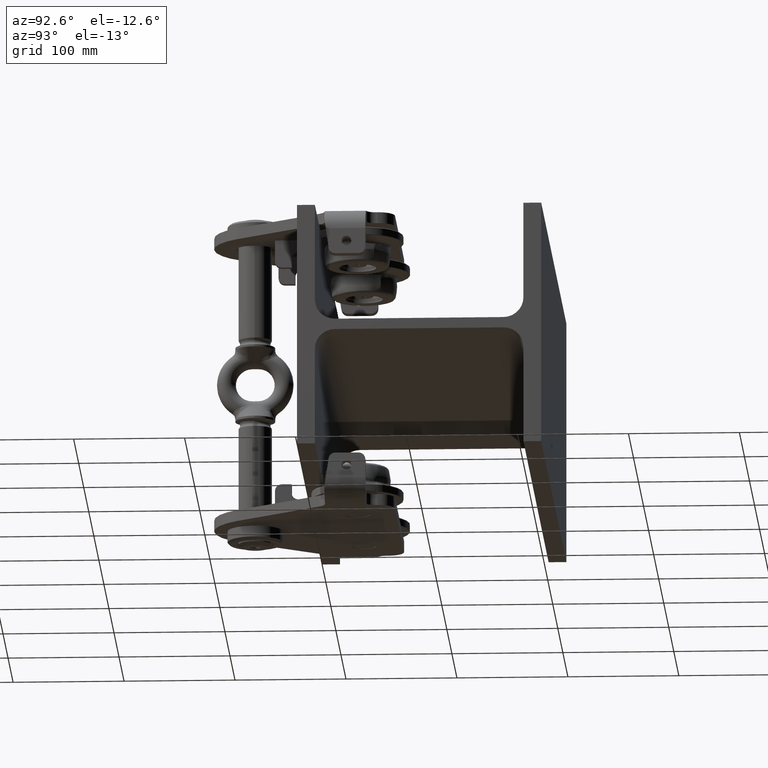
[diagram: clean part render]
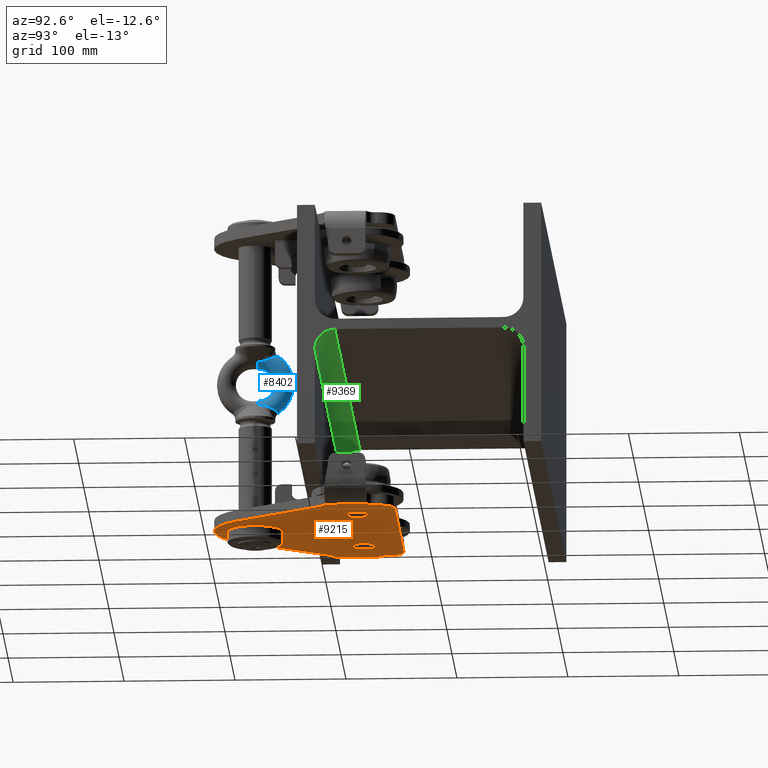
[diagram: same view with three faces highlighted in distinct colors, each labeled with its STEP entity id]
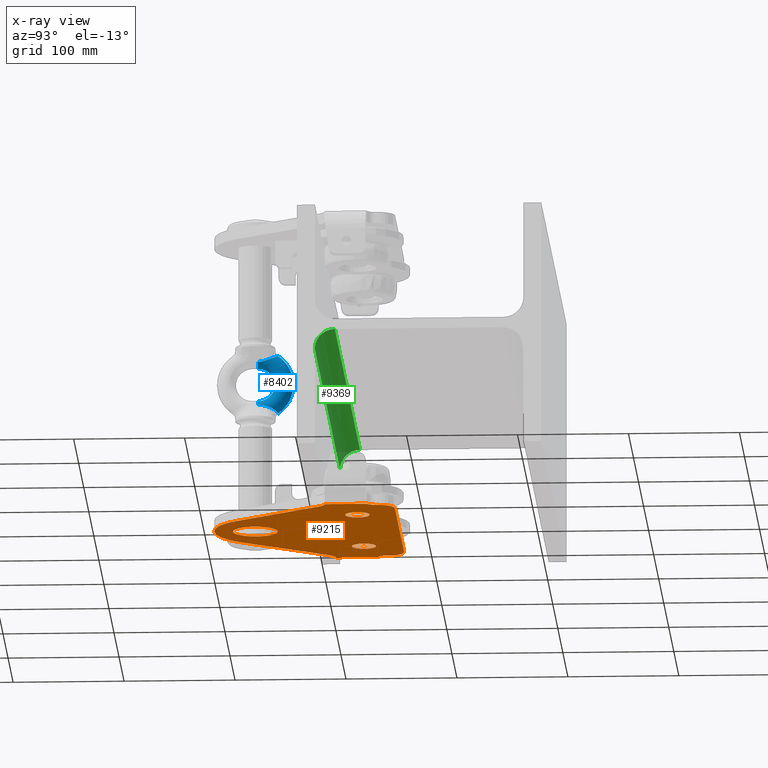
[diagram: x-ray of the same camera — body ghosted, the three highlighted faces saturated]
A machine part, auxiliary view with three faces highlighted in distinct colors.
The next image is the same camera in x-ray (body ghosted, the three faces saturated) — at least one of them is partly hidden behind the body in this view.
Their STEP definitions:

[orange] entity #9215 — the highlighted planar face has unit normal (0, 0, -1).
#865 = CARTESIAN_POINT ( 'NONE',  ( 112.9999999999998900, -45.99999999999968700, -135.0000000000001100 ) ) ;
#1586 = DIRECTION ( 'NONE',  ( 0.0000000000000000000, 1.000000000000000000, 0.0000000000000000000 ) ) ;
#1664 = CIRCLE ( 'NONE', #12800, 8.000000000000007100 ) ;
#2014 = DIRECTION ( 'NONE',  ( 0.0000000000000000000, -1.000000000000000000, 0.0000000000000000000 ) ) ;
#2018 = LINE ( 'NONE', #9593, #3473 ) ;
#2527 = CARTESIAN_POINT ( 'NONE',  ( 100.5044433247463200, -97.11722923742202300, -135.0000000000001100 ) ) ;
#2792 = ORIENTED_EDGE ( 'NONE', *, *, #28403, .T. ) ;
#3178 = VECTOR ( 'NONE', #13785, 1000.000000000000000 ) ;
#3216 = VERTEX_POINT ( 'NONE', #13326 ) ;
#3361 = DIRECTION ( 'NONE',  ( 0.0000000000000000000, -1.224606353822377300E-016, 1.000000000000000000 ) ) ;
#3473 = VECTOR ( 'NONE', #12899, 1000.000000000000000 ) ;
#3526 = AXIS2_PLACEMENT_3D ( 'NONE', #21510, #15787, #3726 ) ;
#3682 = VERTEX_POINT ( 'NONE', #6926 ) ;
#3726 = DIRECTION ( 'NONE',  ( 0.0000000000000000000, 1.000000000000000000, 0.0000000000000000000 ) ) ;
#4007 = ORIENTED_EDGE ( 'NONE', *, *, #27971, .T. ) ;
#4423 = CIRCLE ( 'NONE', #11674, 15.00000000000000000 ) ;
#4471 = ORIENTED_EDGE ( 'NONE', *, *, #23374, .F. ) ;
#4672 = DIRECTION ( 'NONE',  ( 0.0000000000000000000, 1.224606353822377300E-016, -1.000000000000000000 ) ) ;
#5060 = CARTESIAN_POINT ( 'NONE',  ( 89.99999999999990100, -43.99999999999968700, -135.0000000000001100 ) ) ;
#5061 = CARTESIAN_POINT ( 'NONE',  ( -110.0000000000001000, -53.41619848709533600, -135.0000000000001100 ) ) ;
#5373 = DIRECTION ( 'NONE',  ( 0.0000000000000000000, -1.224606353822377300E-016, 1.000000000000000000 ) ) ;
#5562 = CARTESIAN_POINT ( 'NONE',  ( -65.00000000000012800, -52.99999999999970200, -135.0000000000001100 ) ) ;
#6341 = CIRCLE ( 'NONE', #37914, 10.99999999999999600 ) ;
#6357 = AXIS2_PLACEMENT_3D ( 'NONE', #31915, #22865, #17004 ) ;
#6752 = CARTESIAN_POINT ( 'NONE',  ( 109.9999999999998900, -53.41619848709535000, -135.0000000000001100 ) ) ;
#6811 = DIRECTION ( 'NONE',  ( 0.0000000000000000000, -1.000000000000000000, -1.224606353822377300E-016 ) ) ;
#6926 = CARTESIAN_POINT ( 'NONE',  ( -89.99999999999997200, -28.99999999999966600, -135.0000000000001100 ) ) ;
#6953 = AXIS2_PLACEMENT_3D ( 'NONE', #5060, #7848, #2014 ) ;
#6984 = DIRECTION ( 'NONE',  ( 0.0000000000000000000, 1.000000000000000000, 0.0000000000000000000 ) ) ;
#7076 = VERTEX_POINT ( 'NONE', #38728 ) ;
#7254 = LINE ( 'NONE', #2527, #27075 ) ;
#7291 = DIRECTION ( 'NONE',  ( 0.0000000000000000000, -1.000000000000000000, 0.0000000000000000000 ) ) ;
#7485 = EDGE_CURVE ( 'NONE', #14420, #3682, #19963, .T. ) ;
#7587 = DIRECTION ( 'NONE',  ( -0.0000000000000000000, -1.224606353822377300E-016, 1.000000000000000000 ) ) ;
#7651 = ORIENTED_EDGE ( 'NONE', *, *, #19091, .T. ) ;
#7652 = VERTEX_POINT ( 'NONE', #33727 ) ;
#7683 = PLANE ( 'NONE',  #7805 ) ;
#7805 = AXIS2_PLACEMENT_3D ( 'NONE', #19970, #13790, #7952 ) ;
#7848 = DIRECTION ( 'NONE',  ( 0.0000000000000000000, 1.224606353822377300E-016, -1.000000000000000000 ) ) ;
#7901 = CIRCLE ( 'NONE', #6953, 14.99999999999999300 ) ;
#7905 = EDGE_CURVE ( 'NONE', #25572, #28253, #23162, .T. ) ;
#7952 = DIRECTION ( 'NONE',  ( 0.0000000000000000000, 1.000000000000000000, 1.224606353822377300E-016 ) ) ;
#8097 = FACE_BOUND ( 'NONE', #37739, .T. ) ;
#8184 = ORIENTED_EDGE ( 'NONE', *, *, #32822, .T. ) ;
#8209 = CARTESIAN_POINT ( 'NONE',  ( -110.0000000000001000, -91.22555426256066400, -135.0000000000001100 ) ) ;
#8561 = FACE_BOUND ( 'NONE', #15406, .T. ) ;
#8611 = DIRECTION ( 'NONE',  ( -0.5921847175051813100, -0.8058022464310388200, -9.867905509037950400E-017 ) ) ;
#8807 = ORIENTED_EDGE ( 'NONE', *, *, #17327, .T. ) ;
#9034 = FACE_OUTER_BOUND ( 'NONE', #38566, .T. ) ;
#9215 = ADVANCED_FACE ( 'NONE', ( #10924, #8561, #8097, #9034 ), #7683, .T. ) ;
#9593 = CARTESIAN_POINT ( 'NONE',  ( -110.0000000000001000, -195.9999999999997200, -135.0000000000001100 ) ) ;
#10379 = VERTEX_POINT ( 'NONE', #26289 ) ;
#10614 = ORIENTED_EDGE ( 'NONE', *, *, #18399, .T. ) ;
#10619 = ORIENTED_EDGE ( 'NONE', *, *, #18892, .T. ) ;
#10723 = DIRECTION ( 'NONE',  ( 0.0000000000000000000, 1.224606353822377300E-016, -1.000000000000000000 ) ) ;
#10924 = FACE_BOUND ( 'NONE', #38836, .T. ) ;
#11299 = CIRCLE ( 'NONE', #18006, 20.10000000000000900 ) ;
#11591 = ORIENTED_EDGE ( 'NONE', *, *, #7485, .F. ) ;
#11674 = AXIS2_PLACEMENT_3D ( 'NONE', #22724, #26049, #25784 ) ;
#11782 = EDGE_CURVE ( 'NONE', #23353, #14688, #18636, .T. ) ;
#12043 = ORIENTED_EDGE ( 'NONE', *, *, #11782, .T. ) ;
#12799 = AXIS2_PLACEMENT_3D ( 'NONE', #25381, #4672, #31509 ) ;
#12800 = AXIS2_PLACEMENT_3D ( 'NONE', #22594, #7587, #37536 ) ;
#12899 = DIRECTION ( 'NONE',  ( 0.0000000000000000000, 1.000000000000000000, 1.224606353822377300E-016 ) ) ;
#13051 = EDGE_CURVE ( 'NONE', #3216, #7076, #27332, .T. ) ;
#13326 = CARTESIAN_POINT ( 'NONE',  ( -8.326672684688674100E-014, -138.8999999999996900, -135.0000000000001100 ) ) ;
#13496 = EDGE_CURVE ( 'NONE', #38339, #26325, #25846, .T. ) ;
#13605 = VECTOR ( 'NONE', #30823, 1000.000000000000000 ) ;
#13785 = DIRECTION ( 'NONE',  ( 0.0000000000000000000, 1.000000000000000000, 1.224606353822377300E-016 ) ) ;
#13790 = DIRECTION ( 'NONE',  ( 0.0000000000000000000, 1.224606353822377300E-016, -1.000000000000000000 ) ) ;
#14420 = VERTEX_POINT ( 'NONE', #18443 ) ;
#14490 = CARTESIAN_POINT ( 'NONE',  ( -8.326672684688674100E-014, -158.9999999999996900, -135.0000000000001100 ) ) ;
#14530 = CARTESIAN_POINT ( 'NONE',  ( 64.99999999999990100, -63.99999999999966600, -135.0000000000001100 ) ) ;
#14688 = VERTEX_POINT ( 'NONE', #31635 ) ;
#14737 = CARTESIAN_POINT ( 'NONE',  ( 64.99999999999990100, -52.99999999999965900, -135.0000000000001100 ) ) ;
#15406 = EDGE_LOOP ( 'NONE', ( #34623, #10619 ) ) ;
#15750 = CARTESIAN_POINT ( 'NONE',  ( -100.5044433247465300, -97.11722923742202300, -135.0000000000001100 ) ) ;
#15787 = DIRECTION ( 'NONE',  ( 0.0000000000000000000, 1.224606353822377300E-016, -1.000000000000000000 ) ) ;
#15968 = LINE ( 'NONE', #15750, #13605 ) ;
#16336 = ORIENTED_EDGE ( 'NONE', *, *, #34070, .F. ) ;
#16840 = CARTESIAN_POINT ( 'NONE',  ( -8.326672684688674100E-014, -158.9999999999996900, -135.0000000000001100 ) ) ;
#17004 = DIRECTION ( 'NONE',  ( 0.0000000000000000000, 1.000000000000000000, 0.0000000000000000000 ) ) ;
#17221 = CARTESIAN_POINT ( 'NONE',  ( 109.9999999999998900, -195.9999999999997200, -135.0000000000001100 ) ) ;
#17327 = EDGE_CURVE ( 'NONE', #21966, #10379, #35831, .T. ) ;
#17521 = DIRECTION ( 'NONE',  ( 0.0000000000000000000, 1.224606353822377300E-016, -1.000000000000000000 ) ) ;
#17603 = DIRECTION ( 'NONE',  ( -1.000000000000000000, -0.0000000000000000000, 0.0000000000000000000 ) ) ;
#17794 = ORIENTED_EDGE ( 'NONE', *, *, #30717, .T. ) ;
#17808 = VECTOR ( 'NONE', #6811, 1000.000000000000000 ) ;
#17820 = EDGE_CURVE ( 'NONE', #26325, #3682, #21246, .T. ) ;
#18006 = AXIS2_PLACEMENT_3D ( 'NONE', #14490, #17521, #39275 ) ;
#18399 = EDGE_CURVE ( 'NONE', #19684, #21601, #31126, .T. ) ;
#18443 = CARTESIAN_POINT ( 'NONE',  ( 89.99999999999990100, -28.99999999999968700, -135.0000000000001100 ) ) ;
#18570 = VECTOR ( 'NONE', #17603, 1000.000000000000000 ) ;
#18636 = CIRCLE ( 'NONE', #12799, 54.99999999999997900 ) ;
#18892 = EDGE_CURVE ( 'NONE', #36714, #7652, #32863, .T. ) ;
#19091 = EDGE_CURVE ( 'NONE', #25450, #23543, #4423, .T. ) ;
#19684 = VERTEX_POINT ( 'NONE', #35187 ) ;
#19963 = LINE ( 'NONE', #26526, #18570 ) ;
#19970 = CARTESIAN_POINT ( 'NONE',  ( -110.0000000000001000, -195.9999999999997200, -135.0000000000001100 ) ) ;
#20144 = VERTEX_POINT ( 'NONE', #6752 ) ;
#20662 = CARTESIAN_POINT ( 'NONE',  ( -105.0000000000000900, -43.99999999999976600, -135.0000000000001100 ) ) ;
#21246 = CIRCLE ( 'NONE', #3526, 15.00000000000000000 ) ;
#21432 = CARTESIAN_POINT ( 'NONE',  ( 104.9999999999998900, -43.99999999999978700, -135.0000000000001100 ) ) ;
#21510 = CARTESIAN_POINT ( 'NONE',  ( -90.00000000000008500, -43.99999999999966600, -135.0000000000001100 ) ) ;
#21601 = VERTEX_POINT ( 'NONE', #27132 ) ;
#21690 = CARTESIAN_POINT ( 'NONE',  ( 104.9999999999998900, -43.99999999999978700, -135.0000000000001100 ) ) ;
#21692 = EDGE_CURVE ( 'NONE', #23543, #23243, #2018, .T. ) ;
#21801 = DIRECTION ( 'NONE',  ( 0.0000000000000000000, -1.000000000000000000, 0.0000000000000000000 ) ) ;
#21966 = VERTEX_POINT ( 'NONE', #21432 ) ;
#22594 = CARTESIAN_POINT ( 'NONE',  ( -113.0000000000000900, -45.99999999999966600, -135.0000000000001100 ) ) ;
#22724 = CARTESIAN_POINT ( 'NONE',  ( -112.5914770212121600, -105.9999999999996900, -135.0000000000001100 ) ) ;
#22842 = EDGE_CURVE ( 'NONE', #7652, #36714, #6341, .T. ) ;
#22865 = DIRECTION ( 'NONE',  ( -0.0000000000000000000, -1.224606353822377300E-016, 1.000000000000000000 ) ) ;
#23141 = ORIENTED_EDGE ( 'NONE', *, *, #17820, .T. ) ;
#23162 = CIRCLE ( 'NONE', #29651, 11.00000000000001100 ) ;
#23243 = VERTEX_POINT ( 'NONE', #5061 ) ;
#23353 = VERTEX_POINT ( 'NONE', #26189 ) ;
#23374 = EDGE_CURVE ( 'NONE', #19684, #20144, #33495, .T. ) ;
#23543 = VERTEX_POINT ( 'NONE', #8209 ) ;
#23842 = EDGE_CURVE ( 'NONE', #10379, #20144, #31976, .T. ) ;
#24645 = EDGE_CURVE ( 'NONE', #14688, #25450, #15968, .T. ) ;
#24809 = ORIENTED_EDGE ( 'NONE', *, *, #7905, .T. ) ;
#25359 = CARTESIAN_POINT ( 'NONE',  ( 64.99999999999990100, -63.99999999999966600, -135.0000000000001100 ) ) ;
#25381 = CARTESIAN_POINT ( 'NONE',  ( -8.326672684688674100E-014, -140.9999999999997200, -135.0000000000001100 ) ) ;
#25450 = VERTEX_POINT ( 'NONE', #32187 ) ;
#25572 = VERTEX_POINT ( 'NONE', #14737 ) ;
#25616 = DIRECTION ( 'NONE',  ( 0.0000000000000000000, -1.224606353822377300E-016, 1.000000000000000000 ) ) ;
#25784 = DIRECTION ( 'NONE',  ( 0.0000000000000000000, 1.000000000000000000, 0.0000000000000000000 ) ) ;
#25846 = LINE ( 'NONE', #20662, #27221 ) ;
#26049 = DIRECTION ( 'NONE',  ( -0.0000000000000000000, -1.224606353822377300E-016, 1.000000000000000000 ) ) ;
#26168 = AXIS2_PLACEMENT_3D ( 'NONE', #865, #34107, #6984 ) ;
#26189 = CARTESIAN_POINT ( 'NONE',  ( 44.31912355370705100, -173.5701594627846600, -135.0000000000001100 ) ) ;
#26289 = CARTESIAN_POINT ( 'NONE',  ( 104.9999999999998900, -45.99999999999963100, -135.0000000000001100 ) ) ;
#26325 = VERTEX_POINT ( 'NONE', #34743 ) ;
#26526 = CARTESIAN_POINT ( 'NONE',  ( -110.0000000000001000, -28.99999999999968700, -135.0000000000001100 ) ) ;
#26608 = DIRECTION ( 'NONE',  ( 0.0000000000000000000, -1.224606353822377300E-016, 1.000000000000000000 ) ) ;
#27075 = VECTOR ( 'NONE', #8611, 1000.000000000000200 ) ;
#27132 = CARTESIAN_POINT ( 'NONE',  ( 100.5044433247463200, -97.11722923742202300, -135.0000000000001100 ) ) ;
#27221 = VECTOR ( 'NONE', #32608, 1000.000000000000000 ) ;
#27332 = CIRCLE ( 'NONE', #36490, 20.10000000000000900 ) ;
#27971 = EDGE_CURVE ( 'NONE', #14420, #21966, #7901, .T. ) ;
#28253 = VERTEX_POINT ( 'NONE', #37252 ) ;
#28403 = EDGE_CURVE ( 'NONE', #28253, #25572, #30060, .T. ) ;
#29413 = AXIS2_PLACEMENT_3D ( 'NONE', #33541, #3361, #21801 ) ;
#29651 = AXIS2_PLACEMENT_3D ( 'NONE', #14530, #5373, #29719 ) ;
#29719 = DIRECTION ( 'NONE',  ( 0.0000000000000000000, -1.000000000000000000, 0.0000000000000000000 ) ) ;
#30060 = CIRCLE ( 'NONE', #36444, 11.00000000000001100 ) ;
#30178 = ORIENTED_EDGE ( 'NONE', *, *, #23842, .T. ) ;
#30282 = CARTESIAN_POINT ( 'NONE',  ( -105.0000000000000900, -45.99999999999960900, -135.0000000000001100 ) ) ;
#30519 = ORIENTED_EDGE ( 'NONE', *, *, #21692, .T. ) ;
#30717 = EDGE_CURVE ( 'NONE', #21601, #23353, #7254, .T. ) ;
#30823 = DIRECTION ( 'NONE',  ( -0.5921847175051816500, 0.8058022464310385900, 9.867905509037949100E-017 ) ) ;
#31126 = CIRCLE ( 'NONE', #6357, 15.00000000000000000 ) ;
#31182 = ORIENTED_EDGE ( 'NONE', *, *, #24645, .T. ) ;
#31509 = DIRECTION ( 'NONE',  ( 0.0000000000000000000, 1.000000000000000000, 0.0000000000000000000 ) ) ;
#31635 = CARTESIAN_POINT ( 'NONE',  ( -44.31912355370719300, -173.5701594627846900, -135.0000000000001100 ) ) ;
#31692 = ORIENTED_EDGE ( 'NONE', *, *, #13051, .F. ) ;
#31915 = CARTESIAN_POINT ( 'NONE',  ( 112.5914770212119300, -105.9999999999996900, -135.0000000000001100 ) ) ;
#31976 = CIRCLE ( 'NONE', #26168, 8.000000000000000000 ) ;
#32187 = CARTESIAN_POINT ( 'NONE',  ( -100.5044433247465300, -97.11722923742202300, -135.0000000000001100 ) ) ;
#32608 = DIRECTION ( 'NONE',  ( 0.0000000000000000000, 1.000000000000000000, 1.224606353822377300E-016 ) ) ;
#32645 = ORIENTED_EDGE ( 'NONE', *, *, #13496, .T. ) ;
#32822 = EDGE_CURVE ( 'NONE', #23243, #38339, #1664, .T. ) ;
#32863 = CIRCLE ( 'NONE', #29413, 10.99999999999999600 ) ;
#33028 = DIRECTION ( 'NONE',  ( 0.0000000000000000000, -1.000000000000000000, 0.0000000000000000000 ) ) ;
#33495 = LINE ( 'NONE', #17221, #3178 ) ;
#33541 = CARTESIAN_POINT ( 'NONE',  ( -65.00000000000012800, -63.99999999999969400, -135.0000000000001100 ) ) ;
#33727 = CARTESIAN_POINT ( 'NONE',  ( -65.00000000000012800, -74.99999999999968700, -135.0000000000001100 ) ) ;
#34070 = EDGE_CURVE ( 'NONE', #7076, #3216, #11299, .T. ) ;
#34107 = DIRECTION ( 'NONE',  ( -0.0000000000000000000, -1.224606353822377300E-016, 1.000000000000000000 ) ) ;
#34623 = ORIENTED_EDGE ( 'NONE', *, *, #22842, .T. ) ;
#34743 = CARTESIAN_POINT ( 'NONE',  ( -105.0000000000000900, -43.99999999999977300, -135.0000000000001100 ) ) ;
#35187 = CARTESIAN_POINT ( 'NONE',  ( 109.9999999999998900, -91.22555426256067800, -135.0000000000001100 ) ) ;
#35831 = LINE ( 'NONE', #21690, #17808 ) ;
#36444 = AXIS2_PLACEMENT_3D ( 'NONE', #25359, #25616, #7291 ) ;
#36490 = AXIS2_PLACEMENT_3D ( 'NONE', #16840, #10723, #1586 ) ;
#36714 = VERTEX_POINT ( 'NONE', #5562 ) ;
#37252 = CARTESIAN_POINT ( 'NONE',  ( 64.99999999999990100, -74.99999999999967300, -135.0000000000001100 ) ) ;
#37536 = DIRECTION ( 'NONE',  ( 0.0000000000000000000, 1.000000000000000000, 0.0000000000000000000 ) ) ;
#37739 = EDGE_LOOP ( 'NONE', ( #31692, #16336 ) ) ;
#37914 = AXIS2_PLACEMENT_3D ( 'NONE', #39052, #26608, #33028 ) ;
#38339 = VERTEX_POINT ( 'NONE', #30282 ) ;
#38566 = EDGE_LOOP ( 'NONE', ( #8807, #30178, #4471, #10614, #17794, #12043, #31182, #7651, #30519, #8184, #32645, #23141, #11591, #4007 ) ) ;
#38728 = CARTESIAN_POINT ( 'NONE',  ( -8.080518678060055400E-014, -179.0999999999997100, -135.0000000000001100 ) ) ;
#38836 = EDGE_LOOP ( 'NONE', ( #2792, #24809 ) ) ;
#39052 = CARTESIAN_POINT ( 'NONE',  ( -65.00000000000012800, -63.99999999999969400, -135.0000000000001100 ) ) ;
#39275 = DIRECTION ( 'NONE',  ( 0.0000000000000000000, 1.000000000000000000, 0.0000000000000000000 ) ) ;

[blue] entity #8402 — the highlighted toroidal blend (fillet) surface has major radius 23.5 mm and minor (blend) radius 8.5 mm.
#1143 = VERTEX_POINT ( 'NONE', #3153 ) ;
#1325 = CARTESIAN_POINT ( 'NONE',  ( 7.574453641674433700, -155.9422247285973000, -19.64269844990710500 ) ) ;
#1994 = CARTESIAN_POINT ( 'NONE',  ( -9.122405475182829400E-014, -138.3872970200483800, -26.38048503648212100 ) ) ;
#2256 = CARTESIAN_POINT ( 'NONE',  ( 7.774547543605601500, -153.7290537067473500, 19.87270462672605800 ) ) ;
#2268 = CARTESIAN_POINT ( 'NONE',  ( 8.033546829603928100, -143.7640833720838300, -22.98436222492667000 ) ) ;
#2757 = CARTESIAN_POINT ( 'NONE',  ( -9.122405475182829400E-014, -138.3872970200483800, -26.38048503648212100 ) ) ;
#3082 = EDGE_CURVE ( 'NONE', #15156, #6083, #27058, .T. ) ;
#3084 = B_SPLINE_CURVE_WITH_KNOTS ( 'NONE', 3,
 ( #7816, #22961, #14193, #14313, #17219, #38430, #20349, #20226, #11221, #32395, #17344, #2256, #13783, #34958, #27123, #6150 ),
 .UNSPECIFIED., .F., .F.,
 ( 4, 2, 2, 2, 2, 2, 2, 4 ),
 ( 0.0000000000000000000, 0.003371336602414275500, 0.005057004903621454100, 0.006742673204828631700, 0.008428341506035809400, 0.01011400980724298800, 0.01179967810845016500, 0.01348534640965734200 ),
 .UNSPECIFIED. ) ;
#3153 = CARTESIAN_POINT ( 'NONE',  ( 8.033546829603928100, -143.7640833720838300, -22.98436222492667000 ) ) ;
#3482 = CARTESIAN_POINT ( 'NONE',  ( -8.492736678298794800E-014, -156.4999999999998300, -2.775557561562908600E-016 ) ) ;
#3742 = DIRECTION ( 'NONE',  ( -1.942890293094023700E-016, 0.0000000000000000000, -1.000000000000000000 ) ) ;
#3926 = CARTESIAN_POINT ( 'NONE',  ( 6.424624547605692900, -140.8448221214604500, 24.51014663231787700 ) ) ;
#4361 = B_SPLINE_CURVE_WITH_KNOTS ( 'NONE', 3,
 ( #25634, #1325, #16457, #16719, #31892, #13801, #37653, #37929, #19454, #34980, #16846, #38047, #4908, #11237, #32162, #2268 ),
 .UNSPECIFIED., .F., .F.,
 ( 4, 2, 2, 2, 2, 2, 2, 4 ),
 ( 0.0000000000000000000, 0.001673460226891364700, 0.003346920453782729500, 0.005020380680674094800, 0.006693840907565458900, 0.008367301134456824700, 0.01004076136134819000, 0.01338768181513099600 ),
 .UNSPECIFIED. ) ;
#4908 = CARTESIAN_POINT ( 'NONE',  ( 8.508370039768559300, -147.3449088361226700, -21.61594198959649700 ) ) ;
#5034 = CARTESIAN_POINT ( 'NONE',  ( 7.559127262799635500, -156.4999999999995500, -19.61289374665446400 ) ) ;
#5914 = CARTESIAN_POINT ( 'NONE',  ( 2.283317817531743500, -138.6040629296119800, -26.16612557631989600 ) ) ;
#6083 = VERTEX_POINT ( 'NONE', #33191 ) ;
#6150 = CARTESIAN_POINT ( 'NONE',  ( 7.559127262799622200, -156.5000000000004000, 19.61289374665442200 ) ) ;
#6729 = DIRECTION ( 'NONE',  ( -1.942890293094023500E-016, 2.308401265341874400E-063, -1.000000000000000000 ) ) ;
#6849 = DIRECTION ( 'NONE',  ( 5.466568581945343200E-030, 1.000000000000000000, 2.806576585717701600E-014 ) ) ;
#6977 = CARTESIAN_POINT ( 'NONE',  ( 3.779516363431129700, -139.0586105662918300, 25.76940616030555700 ) ) ;
#7471 = ORIENTED_EDGE ( 'NONE', *, *, #3082, .T. ) ;
#7654 = ORIENTED_EDGE ( 'NONE', *, *, #10330, .T. ) ;
#7816 = CARTESIAN_POINT ( 'NONE',  ( 8.033546829602633100, -143.7640833720794500, 22.98436222492857100 ) ) ;
#8278 = CIRCLE ( 'NONE', #23933, 32.00000000000000000 ) ;
#8402 = ADVANCED_FACE ( 'NONE', ( #31629 ), #11275, .T. ) ;
#8581 = CARTESIAN_POINT ( 'NONE',  ( 6.424268037676113400, -140.8447427148367700, -24.51024583028874200 ) ) ;
#8631 = AXIS2_PLACEMENT_3D ( 'NONE', #37807, #10495, #13418 ) ;
#8833 = CARTESIAN_POINT ( 'NONE',  ( 6.696812826311218100, -141.1590402379832200, -24.31771801360148900 ) ) ;
#8901 = AXIS2_PLACEMENT_3D ( 'NONE', #39111, #12543, #6729 ) ;
#9374 = ORIENTED_EDGE ( 'NONE', *, *, #18068, .T. ) ;
#9499 = CARTESIAN_POINT ( 'NONE',  ( 3.148586283545816500, -138.8352792530221500, 25.95833939416901300 ) ) ;
#9766 = CARTESIAN_POINT ( 'NONE',  ( 4.765762826312880800, -139.5250945415055500, 25.40303718732183200 ) ) ;
#9903 = CARTESIAN_POINT ( 'NONE',  ( 2.284822189019915000, -138.6046149225598200, 26.16565341312700400 ) ) ;
#10330 = EDGE_CURVE ( 'NONE', #30570, #1143, #4361, .T. ) ;
#10401 = ORIENTED_EDGE ( 'NONE', *, *, #28431, .T. ) ;
#10495 = DIRECTION ( 'NONE',  ( -2.729348171648830200E-030, -1.000000000000000000, -1.397737177735725000E-014 ) ) ;
#11221 = CARTESIAN_POINT ( 'NONE',  ( 8.176983259097440300, -151.0428472266674200, 20.45342395409460000 ) ) ;
#11237 = CARTESIAN_POINT ( 'NONE',  ( 8.461707026444957000, -145.7828523068526200, -22.16352645544085200 ) ) ;
#11275 = TOROIDAL_SURFACE ( 'NONE', #8901, 23.50000000000000000, 8.500000000000000000 ) ;
#11584 = CARTESIAN_POINT ( 'NONE',  ( 1.834805980855017900, -138.5222945162018700, -26.24552866953794700 ) ) ;
#12526 = CARTESIAN_POINT ( 'NONE',  ( 8.033546829602633100, -143.7640833720794500, 22.98436222492857100 ) ) ;
#12543 = DIRECTION ( 'NONE',  ( 1.000000000000000000, -1.369817672945421200E-032, -1.942890293094023500E-016 ) ) ;
#12666 = CARTESIAN_POINT ( 'NONE',  ( 3.570518359231077600, -138.9783858210133500, 25.83608058414664300 ) ) ;
#12718 = EDGE_LOOP ( 'NONE', ( #35924, #10401, #7471, #25371, #9374, #30607, #28456, #7654 ) ) ;
#12808 = CARTESIAN_POINT ( 'NONE',  ( 5.472439830082359800, -140.0007610233908200, 25.06488655157131600 ) ) ;
#12812 = DIRECTION ( 'NONE',  ( 1.000000000000000000, 0.0000000000000000000, 0.0000000000000000000 ) ) ;
#13060 = CARTESIAN_POINT ( 'NONE',  ( 7.760297345766288000, -142.9560003260312200, 23.34853522374580600 ) ) ;
#13418 = DIRECTION ( 'NONE',  ( 1.000000000000000000, 0.0000000000000000000, 0.0000000000000000000 ) ) ;
#13783 = CARTESIAN_POINT ( 'NONE',  ( 7.707850285550932800, -154.2795109305813200, 19.79835566781939700 ) ) ;
#13801 = CARTESIAN_POINT ( 'NONE',  ( 7.926675991449710200, -152.6439283190281900, -20.06417413808351900 ) ) ;
#14193 = CARTESIAN_POINT ( 'NONE',  ( 8.461781882911447300, -145.7835795734039000, 22.16325586094311400 ) ) ;
#14313 = CARTESIAN_POINT ( 'NONE',  ( 8.508368360528246300, -147.3457429328572100, 21.61565742733731100 ) ) ;
#14427 = CARTESIAN_POINT ( 'NONE',  ( -8.492736678298794800E-014, -156.5000000000002600, 15.00000000000000000 ) ) ;
#14454 = CARTESIAN_POINT ( 'NONE',  ( -8.388641700371268600E-014, -156.4999999999998300, -2.775557561562910600E-016 ) ) ;
#14535 = CARTESIAN_POINT ( 'NONE',  ( 7.398558151570305200, -142.2010227091671800, -23.72952647949159700 ) ) ;
#15128 = CIRCLE ( 'NONE', #23534, 8.500000000000000000 ) ;
#15156 = VERTEX_POINT ( 'NONE', #20950 ) ;
#15545 = B_SPLINE_CURVE_WITH_KNOTS ( 'NONE', 3,
 ( #29872, #36128, #23477, #14535, #39206, #8833, #8581, #20957, #33054, #20837, #23989, #5914, #11584, #38814, #20572, #2757 ),
 .UNSPECIFIED., .F., .F.,
 ( 4, 2, 2, 2, 2, 2, 2, 4 ),
 ( 0.0000000000000000000, 0.001382745869638573100, 0.002765491739277146100, 0.004148237608915719000, 0.005530983478554292300, 0.008296475217831396400, 0.009679221087469951400, 0.01106196695710850300 ),
 .UNSPECIFIED. ) ;
#15805 = DIRECTION ( 'NONE',  ( 1.000000000000000000, -1.369817672945421200E-032, -1.942890293094023500E-016 ) ) ;
#16006 = CARTESIAN_POINT ( 'NONE',  ( 6.697227980185189700, -141.1597510625164500, 24.31733256276206500 ) ) ;
#16457 = CARTESIAN_POINT ( 'NONE',  ( 7.607863819434903100, -155.3867773818499500, -19.68353115087420900 ) ) ;
#16540 = VERTEX_POINT ( 'NONE', #14427 ) ;
#16719 = CARTESIAN_POINT ( 'NONE',  ( 7.707665712135207200, -154.2812893182500900, -19.79814650362216000 ) ) ;
#16846 = CARTESIAN_POINT ( 'NONE',  ( 8.437016275276141300, -148.9267678174698200, -21.09536054762147100 ) ) ;
#17219 = CARTESIAN_POINT ( 'NONE',  ( 8.498110677027236500, -147.8708133733472000, 21.43922223185099100 ) ) ;
#17344 = CARTESIAN_POINT ( 'NONE',  ( 7.926745514533161300, -152.6435101297804800, 20.06427242854213600 ) ) ;
#18068 = EDGE_CURVE ( 'NONE', #31341, #16540, #15128, .T. ) ;
#18555 = EDGE_CURVE ( 'NONE', #1143, #25987, #15545, .T. ) ;
#18757 = CARTESIAN_POINT ( 'NONE',  ( 0.4638226216661982000, -138.3872970200484400, 26.38048503648216700 ) ) ;
#18896 = CARTESIAN_POINT ( 'NONE',  ( 5.966247978089470800, -140.4058037192763500, 24.79257777139496400 ) ) ;
#19454 = CARTESIAN_POINT ( 'NONE',  ( 8.256039911982627500, -150.5138287852712700, -20.60626332106522400 ) ) ;
#20226 = CARTESIAN_POINT ( 'NONE',  ( 8.255971919958566800, -150.5143028319906200, 20.60612517120872800 ) ) ;
#20349 = CARTESIAN_POINT ( 'NONE',  ( 8.385842717910517100, -149.4573025604625500, 20.92708601020856200 ) ) ;
#20572 = CARTESIAN_POINT ( 'NONE',  ( 0.4632860262235987700, -138.3872970200484100, -26.38048503648216700 ) ) ;
#20837 = CARTESIAN_POINT ( 'NONE',  ( 4.397823346136729800, -139.2835287970190700, -25.57597263185210000 ) ) ;
#20950 = CARTESIAN_POINT ( 'NONE',  ( -7.635197645058207200E-014, -138.3872970200483800, 26.38048503648211700 ) ) ;
#20957 = CARTESIAN_POINT ( 'NONE',  ( 5.818263074136006600, -140.2638083863354300, -24.88387903600995400 ) ) ;
#21133 = VERTEX_POINT ( 'NONE', #24274 ) ;
#21862 = CARTESIAN_POINT ( 'NONE',  ( 1.840423457576223100, -138.5231337964219200, 26.24470857406125600 ) ) ;
#21987 = CARTESIAN_POINT ( 'NONE',  ( 0.9293989636724447900, -138.4142390644671800, 26.35245626647349200 ) ) ;
#22961 = CARTESIAN_POINT ( 'NONE',  ( 8.330479298748711500, -144.7585562054945900, 22.55338694072617000 ) ) ;
#23477 = CARTESIAN_POINT ( 'NONE',  ( 7.760995064851663900, -142.9581457116808000, -23.34756826583961600 ) ) ;
#23534 = AXIS2_PLACEMENT_3D ( 'NONE', #34374, #6849, #12812 ) ;
#23595 = CARTESIAN_POINT ( 'NONE',  ( 7.559127262799622200, -156.5000000000004000, 19.61289374665442200 ) ) ;
#23933 = AXIS2_PLACEMENT_3D ( 'NONE', #14454, #26033, #38300 ) ;
#23989 = CARTESIAN_POINT ( 'NONE',  ( 3.597265866761535600, -138.9428338391783200, -25.85972113450365500 ) ) ;
#24274 = CARTESIAN_POINT ( 'NONE',  ( -8.492736678298794800E-014, -156.4999999999996300, -15.00000000000000000 ) ) ;
#24660 = CARTESIAN_POINT ( 'NONE',  ( 5.300197666607810600, -139.8762346662135800, 25.15171170250723200 ) ) ;
#25048 = CARTESIAN_POINT ( 'NONE',  ( 7.182092030081491900, -141.8336366515548500, 23.92914444498053300 ) ) ;
#25371 = ORIENTED_EDGE ( 'NONE', *, *, #33534, .T. ) ;
#25634 = CARTESIAN_POINT ( 'NONE',  ( 7.559127262799635500, -156.4999999999995500, -19.61289374665446400 ) ) ;
#25987 = VERTEX_POINT ( 'NONE', #1994 ) ;
#26033 = DIRECTION ( 'NONE',  ( 1.000000000000000000, -1.369817672945421200E-032, -1.942890293094023500E-016 ) ) ;
#26198 = CIRCLE ( 'NONE', #38303, 15.00000000000000000 ) ;
#27058 = B_SPLINE_CURVE_WITH_KNOTS ( 'NONE', 3,
 ( #33724, #18757, #21987, #21862, #9903, #31194, #9499, #12666, #6977, #37058, #9766, #24660, #12808, #30672, #18896, #3926, #16006, #25048, #27982, #13060, #37193, #12526 ),
 .UNSPECIFIED., .F., .F.,
 ( 4, 2, 2, 2, 2, 2, 2, 2, 2, 2, 4 ),
 ( 0.01106196695710519500, 0.01244631437544135000, 0.01383066179377750300, 0.01452283550294558100, 0.01521500921211365800, 0.01659935663044984100, 0.01729153033961795100, 0.01798370404878606500, 0.01936805146712228300, 0.02075239888545849600, 0.02213674630379471700 ),
 .UNSPECIFIED. ) ;
#27123 = CARTESIAN_POINT ( 'NONE',  ( 7.574460406512368000, -155.9419785348063400, 19.64271160526421400 ) ) ;
#27982 = CARTESIAN_POINT ( 'NONE',  ( 7.394690100197859600, -142.1936389472079400, 23.73336829731744400 ) ) ;
#28431 = EDGE_CURVE ( 'NONE', #25987, #15156, #8278, .T. ) ;
#28456 = ORIENTED_EDGE ( 'NONE', *, *, #33867, .F. ) ;
#29872 = CARTESIAN_POINT ( 'NONE',  ( 8.033546829603928100, -143.7640833720838300, -22.98436222492667000 ) ) ;
#30271 = EDGE_CURVE ( 'NONE', #21133, #16540, #26198, .T. ) ;
#30570 = VERTEX_POINT ( 'NONE', #5034 ) ;
#30607 = ORIENTED_EDGE ( 'NONE', *, *, #30271, .F. ) ;
#30672 = CARTESIAN_POINT ( 'NONE',  ( 5.805078535748145400, -140.2651543664970900, 24.88557040155972900 ) ) ;
#31194 = CARTESIAN_POINT ( 'NONE',  ( 2.934741154243224700, -138.7719361114716300, 26.01427774808178100 ) ) ;
#31341 = VERTEX_POINT ( 'NONE', #23595 ) ;
#31629 = FACE_OUTER_BOUND ( 'NONE', #12718, .T. ) ;
#31892 = CARTESIAN_POINT ( 'NONE',  ( 7.774365471924963500, -153.7304301315865900, -19.87248625893934000 ) ) ;
#32162 = CARTESIAN_POINT ( 'NONE',  ( 8.330585538749524200, -144.7589120197154400, -22.55323274130549600 ) ) ;
#32395 = CARTESIAN_POINT ( 'NONE',  ( 8.012117313590144000, -152.1073115485289100, 20.18206153499045600 ) ) ;
#33054 = CARTESIAN_POINT ( 'NONE',  ( 5.482589876939055500, -139.9959812510622900, -25.06598573410242600 ) ) ;
#33191 = CARTESIAN_POINT ( 'NONE',  ( 8.033546829602633100, -143.7640833720794500, 22.98436222492857100 ) ) ;
#33534 = EDGE_CURVE ( 'NONE', #6083, #31341, #3084, .T. ) ;
#33724 = CARTESIAN_POINT ( 'NONE',  ( -7.635197645058207200E-014, -138.3872970200483800, 26.38048503648211700 ) ) ;
#33867 = EDGE_CURVE ( 'NONE', #30570, #21133, #37438, .T. ) ;
#34374 = CARTESIAN_POINT ( 'NONE',  ( -7.932062481494173000E-014, -156.5000000000005100, 23.50000000000000000 ) ) ;
#34958 = CARTESIAN_POINT ( 'NONE',  ( 7.607898068798417200, -155.3861324900539100, 19.68357328288465500 ) ) ;
#34980 = CARTESIAN_POINT ( 'NONE',  ( 8.385914111975179000, -149.4566420781105800, -20.92729236923274200 ) ) ;
#35924 = ORIENTED_EDGE ( 'NONE', *, *, #18555, .T. ) ;
#36128 = CARTESIAN_POINT ( 'NONE',  ( 7.910971438574415900, -143.3531564083200500, -23.16204793979065400 ) ) ;
#37058 = CARTESIAN_POINT ( 'NONE',  ( 4.385950768220936900, -139.3208829996382300, 25.55853810899958100 ) ) ;
#37193 = CARTESIAN_POINT ( 'NONE',  ( 7.910821924882844400, -143.3526551722505100, 23.16226467535984000 ) ) ;
#37438 = CIRCLE ( 'NONE', #8631, 8.500000000000000000 ) ;
#37653 = CARTESIAN_POINT ( 'NONE',  ( 8.012103469725513300, -152.1074035489000900, -20.18203515796595900 ) ) ;
#37807 = CARTESIAN_POINT ( 'NONE',  ( -8.845220919248364300E-014, -156.4999999999995200, -23.50000000000000000 ) ) ;
#37929 = CARTESIAN_POINT ( 'NONE',  ( 8.177037225213451800, -151.0424961745453600, -20.45351637153306600 ) ) ;
#38047 = CARTESIAN_POINT ( 'NONE',  ( 8.498138546864831600, -147.8699881405824800, -21.43949636248219500 ) ) ;
#38300 = DIRECTION ( 'NONE',  ( -1.942890293094021700E-016, 0.0000000000000000000, -1.000000000000000000 ) ) ;
#38303 = AXIS2_PLACEMENT_3D ( 'NONE', #3482, #15805, #3742 ) ;
#38430 = CARTESIAN_POINT ( 'NONE',  ( 8.436953892678399600, -148.9275025059973000, 21.09512670448046000 ) ) ;
#38814 = CARTESIAN_POINT ( 'NONE',  ( 0.9269487715852827700, -138.4141155146192800, -26.35258895159034900 ) ) ;
#39111 = CARTESIAN_POINT ( 'NONE',  ( -8.388641700371268600E-014, -156.4999999999998300, -2.775557561562910600E-016 ) ) ;
#39206 = CARTESIAN_POINT ( 'NONE',  ( 7.184014511384915200, -141.8364428413137300, -23.92755204483455200 ) ) ;

[green] entity #9369 — the highlighted cylindrical surface (edge-blend (fillet) strip) has radius 18 mm, axis along (1, 0, 0).
#457 = ORIENTED_EDGE ( 'NONE', *, *, #22662, .F. ) ;
#1722 = EDGE_LOOP ( 'NONE', ( #457, #37220, #21876, #21853 ) ) ;
#8637 = AXIS2_PLACEMENT_3D ( 'NONE', #39113, #36551, #9114 ) ;
#9114 = DIRECTION ( 'NONE',  ( 0.0000000000000000000, 0.0000000000000000000, 1.000000000000000000 ) ) ;
#9369 = ADVANCED_FACE ( 'NONE', ( #13765 ), #31238, .F. ) ;
#10961 = VERTEX_POINT ( 'NONE', #33183 ) ;
#11835 = CARTESIAN_POINT ( 'NONE',  ( 250.0000000000000600, -75.99999999999995700, -22.75000000000005700 ) ) ;
#12417 = VECTOR ( 'NONE', #13143, 1000.000000000000000 ) ;
#13143 = DIRECTION ( 'NONE',  ( 1.000000000000000000, 0.0000000000000000000, 7.703719777548941700E-034 ) ) ;
#13765 = FACE_OUTER_BOUND ( 'NONE', #1722, .T. ) ;
#13957 = VERTEX_POINT ( 'NONE', #26947 ) ;
#14330 = EDGE_CURVE ( 'NONE', #10961, #33452, #34169, .T. ) ;
#14509 = CARTESIAN_POINT ( 'NONE',  ( -250.0000000000000600, -75.99999999999995700, -4.750000000000053300 ) ) ;
#16088 = CARTESIAN_POINT ( 'NONE',  ( -250.0000000000000600, -75.99999999999995700, -4.750000000000053300 ) ) ;
#16357 = CIRCLE ( 'NONE', #24866, 18.00000000000000000 ) ;
#16959 = CARTESIAN_POINT ( 'NONE',  ( 250.0000000000000600, -93.99999999999997200, -22.75000000000006000 ) ) ;
#19952 = AXIS2_PLACEMENT_3D ( 'NONE', #21440, #25089, #20380 ) ;
#20380 = DIRECTION ( 'NONE',  ( 0.0000000000000000000, 0.0000000000000000000, -1.000000000000000000 ) ) ;
#21050 = DIRECTION ( 'NONE',  ( 1.000000000000000000, 0.0000000000000000000, 7.703719777548941700E-034 ) ) ;
#21440 = CARTESIAN_POINT ( 'NONE',  ( -250.0000000000000600, -75.99999999999995700, -22.75000000000005700 ) ) ;
#21853 = ORIENTED_EDGE ( 'NONE', *, *, #35695, .T. ) ;
#21876 = ORIENTED_EDGE ( 'NONE', *, *, #30799, .T. ) ;
#22662 = EDGE_CURVE ( 'NONE', #33452, #13957, #16357, .T. ) ;
#23310 = DIRECTION ( 'NONE',  ( 0.0000000000000000000, 0.0000000000000000000, 1.000000000000000000 ) ) ;
#23583 = DIRECTION ( 'NONE',  ( -1.000000000000000000, -0.0000000000000000000, -7.703719777548941700E-034 ) ) ;
#23816 = CARTESIAN_POINT ( 'NONE',  ( -250.0000000000000600, -93.99999999999997200, -22.75000000000006000 ) ) ;
#24866 = AXIS2_PLACEMENT_3D ( 'NONE', #11835, #23583, #23310 ) ;
#25089 = DIRECTION ( 'NONE',  ( 1.000000000000000000, 0.0000000000000000000, 7.703719777548941700E-034 ) ) ;
#25108 = VECTOR ( 'NONE', #21050, 1000.000000000000000 ) ;
#26947 = CARTESIAN_POINT ( 'NONE',  ( 250.0000000000000600, -75.99999999999995700, -4.750000000000053300 ) ) ;
#28979 = CIRCLE ( 'NONE', #8637, 18.00000000000000000 ) ;
#30799 = EDGE_CURVE ( 'NONE', #10961, #36011, #28979, .T. ) ;
#31238 = CYLINDRICAL_SURFACE ( 'NONE', #19952, 18.00000000000000000 ) ;
#31863 = LINE ( 'NONE', #16088, #12417 ) ;
#33183 = CARTESIAN_POINT ( 'NONE',  ( -250.0000000000000600, -93.99999999999997200, -22.75000000000006000 ) ) ;
#33452 = VERTEX_POINT ( 'NONE', #16959 ) ;
#34169 = LINE ( 'NONE', #23816, #25108 ) ;
#35695 = EDGE_CURVE ( 'NONE', #36011, #13957, #31863, .T. ) ;
#36011 = VERTEX_POINT ( 'NONE', #14509 ) ;
#36551 = DIRECTION ( 'NONE',  ( -1.000000000000000000, -0.0000000000000000000, -7.703719777548941700E-034 ) ) ;
#37220 = ORIENTED_EDGE ( 'NONE', *, *, #14330, .F. ) ;
#39113 = CARTESIAN_POINT ( 'NONE',  ( -250.0000000000000600, -75.99999999999995700, -22.75000000000005700 ) ) ;